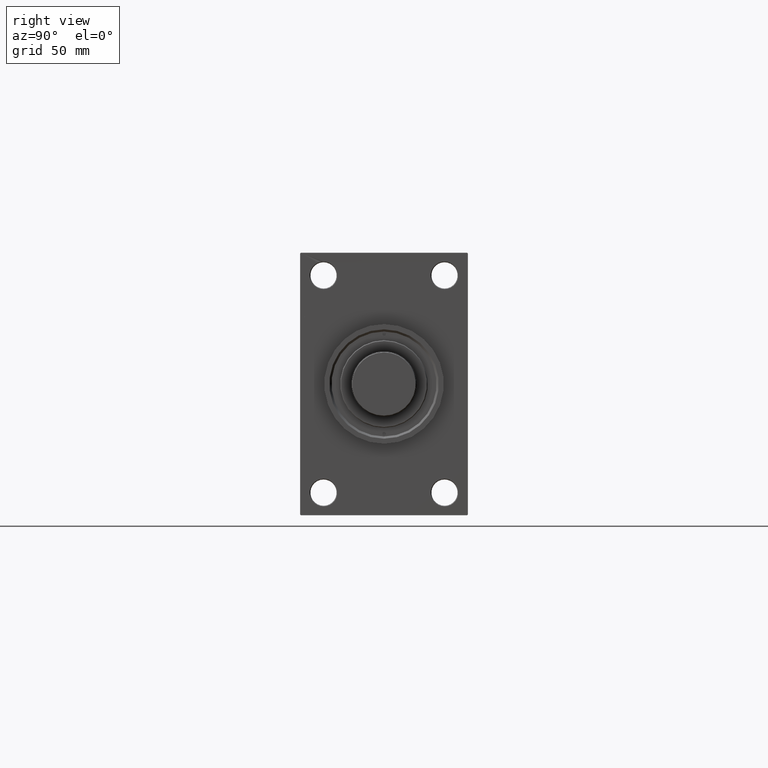
[diagram: clean part render]
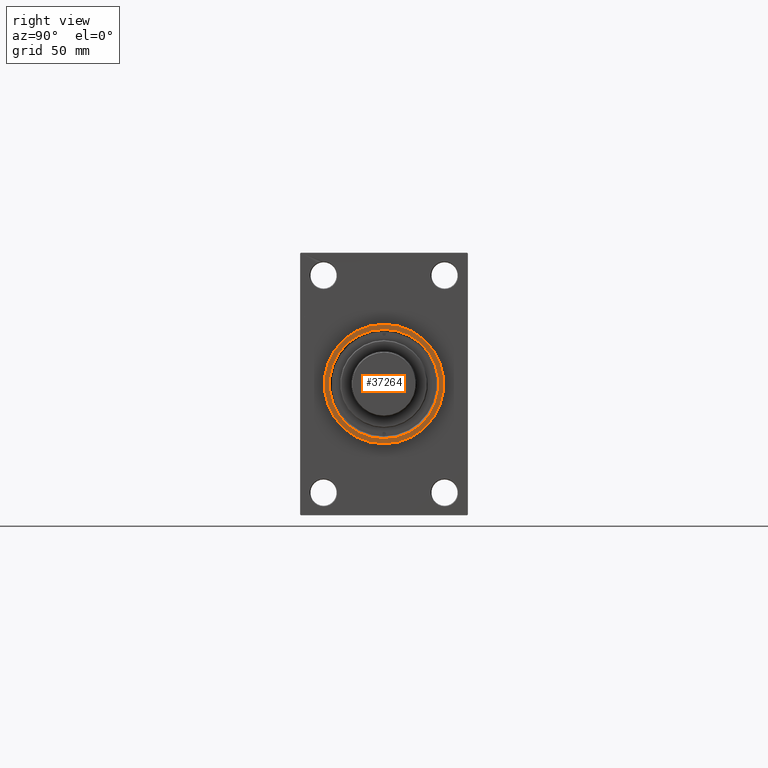
[diagram: same view with one face highlighted and labeled with its STEP entity id]
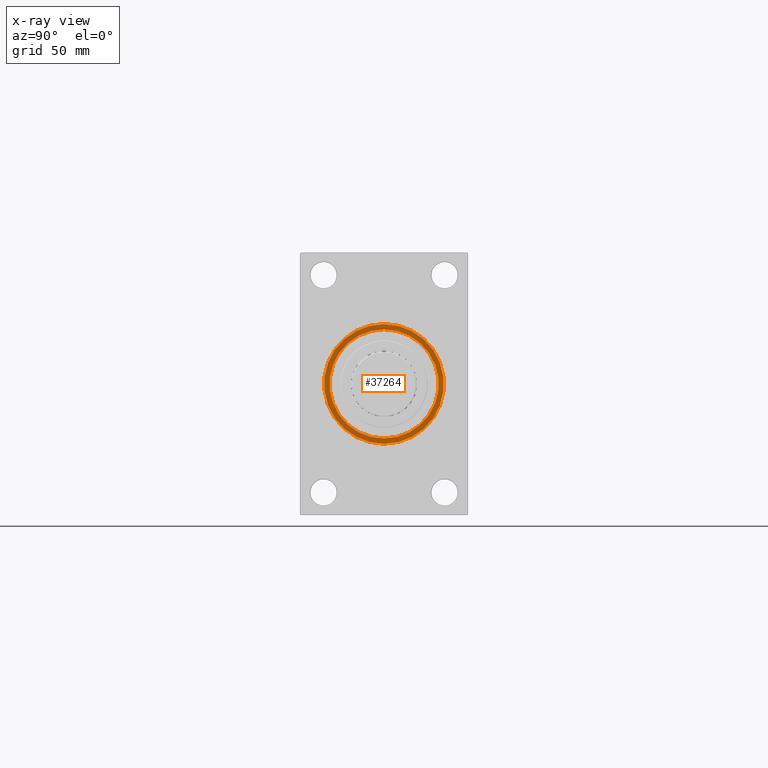
[diagram: x-ray of the same camera — body ghosted, the highlighted face saturated]
A machine part, right view. The second image highlights one B-rep face of the part: STEP entity #37264.
The next image is the same camera in x-ray: the body ghosted, the highlighted face saturated — about 0% of this face is hidden behind the body in this view.
In plain terms, the highlighted planar face has unit normal (1, 0, 0).
Its self-contained STEP definition (entity closure, byte-faithful):
#1341 = EDGE_LOOP ( 'NONE', ( #36658, #22396 ) ) ;
#1351 = AXIS2_PLACEMENT_3D ( 'NONE', #25476, #32083, #36720 ) ;
#1520 = DIRECTION ( 'NONE',  ( 0.000000000000000000, 0.000000000000000000, -1.000000000000000000 ) ) ;
#1748 = VERTEX_POINT ( 'NONE', #23985 ) ;
#2349 = FACE_OUTER_BOUND ( 'NONE', #1341, .T. ) ;
#2597 = CARTESIAN_POINT ( 'NONE',  ( 359.0000000000000000, 0.000000000000000000, 0.000000000000000000 ) ) ;
#4893 = ORIENTED_EDGE ( 'NONE', *, *, #13400, .T. ) ;
#5030 = EDGE_CURVE ( 'NONE', #9059, #1748, #27809, .T. ) ;
#6399 = CARTESIAN_POINT ( 'NONE',  ( 359.0000000000000000, 0.000000000000000000, -37.49999999999997868 ) ) ;
#8820 = AXIS2_PLACEMENT_3D ( 'NONE', #46978, #13482, #1520 ) ;
#9059 = VERTEX_POINT ( 'NONE', #6399 ) ;
#9732 = CARTESIAN_POINT ( 'NONE',  ( 359.0000000000000000, 5.021051876504148963E-15, -41.00000000000000000 ) ) ;
#12492 = CARTESIAN_POINT ( 'NONE',  ( 359.0000000000000000, 0.000000000000000000, 0.000000000000000000 ) ) ;
#13400 = EDGE_CURVE ( 'NONE', #1748, #9059, #46694, .T. ) ;
#13482 = DIRECTION ( 'NONE',  ( 1.000000000000000000, 0.000000000000000000, 0.000000000000000000 ) ) ;
#17514 = DIRECTION ( 'NONE',  ( 0.000000000000000000, 0.000000000000000000, -1.000000000000000000 ) ) ;
#17901 = CARTESIAN_POINT ( 'NONE',  ( 359.0000000000000000, 0.000000000000000000, 41.00000000000000000 ) ) ;
#19277 = DIRECTION ( 'NONE',  ( -1.000000000000000000, -0.000000000000000000, -0.000000000000000000 ) ) ;
#22396 = ORIENTED_EDGE ( 'NONE', *, *, #34982, .T. ) ;
#22501 = AXIS2_PLACEMENT_3D ( 'NONE', #42002, #19277, #33949 ) ;
#23108 = AXIS2_PLACEMENT_3D ( 'NONE', #12492, #39135, #38657 ) ;
#23985 = CARTESIAN_POINT ( 'NONE',  ( 359.0000000000000000, 4.592425496802571211E-15, 37.49999999999997868 ) ) ;
#25476 = CARTESIAN_POINT ( 'NONE',  ( 359.0000000000000000, 0.000000000000000000, 0.000000000000000000 ) ) ;
#27809 = CIRCLE ( 'NONE', #23108, 37.49999999999997868 ) ;
#30627 = EDGE_LOOP ( 'NONE', ( #45016, #4893 ) ) ;
#32083 = DIRECTION ( 'NONE',  ( 1.000000000000000000, 0.000000000000000000, 0.000000000000000000 ) ) ;
#33949 = DIRECTION ( 'NONE',  ( 0.000000000000000000, 0.000000000000000000, -1.000000000000000000 ) ) ;
#34982 = EDGE_CURVE ( 'NONE', #36126, #41399, #44741, .T. ) ;
#35850 = FACE_BOUND ( 'NONE', #30627, .T. ) ;
#36126 = VERTEX_POINT ( 'NONE', #9732 ) ;
#36574 = PLANE ( 'NONE',  #47898 ) ;
#36658 = ORIENTED_EDGE ( 'NONE', *, *, #45466, .T. ) ;
#36720 = DIRECTION ( 'NONE',  ( 0.000000000000000000, 0.000000000000000000, -1.000000000000000000 ) ) ;
#37264 = ADVANCED_FACE ( 'NONE', ( #35850, #2349 ), #36574, .T. ) ;
#38657 = DIRECTION ( 'NONE',  ( 0.000000000000000000, 0.000000000000000000, -1.000000000000000000 ) ) ;
#39135 = DIRECTION ( 'NONE',  ( -1.000000000000000000, -0.000000000000000000, -0.000000000000000000 ) ) ;
#41399 = VERTEX_POINT ( 'NONE', #17901 ) ;
#42002 = CARTESIAN_POINT ( 'NONE',  ( 359.0000000000000000, 0.000000000000000000, 0.000000000000000000 ) ) ;
#44741 = CIRCLE ( 'NONE', #8820, 41.00000000000000000 ) ;
#45016 = ORIENTED_EDGE ( 'NONE', *, *, #5030, .T. ) ;
#45466 = EDGE_CURVE ( 'NONE', #41399, #36126, #47297, .T. ) ;
#46694 = CIRCLE ( 'NONE', #22501, 37.49999999999997868 ) ;
#46978 = CARTESIAN_POINT ( 'NONE',  ( 359.0000000000000000, 0.000000000000000000, 0.000000000000000000 ) ) ;
#47297 = CIRCLE ( 'NONE', #1351, 41.00000000000000000 ) ;
#47329 = DIRECTION ( 'NONE',  ( 1.000000000000000000, 0.000000000000000000, 0.000000000000000000 ) ) ;
#47898 = AXIS2_PLACEMENT_3D ( 'NONE', #2597, #47329, #17514 ) ;